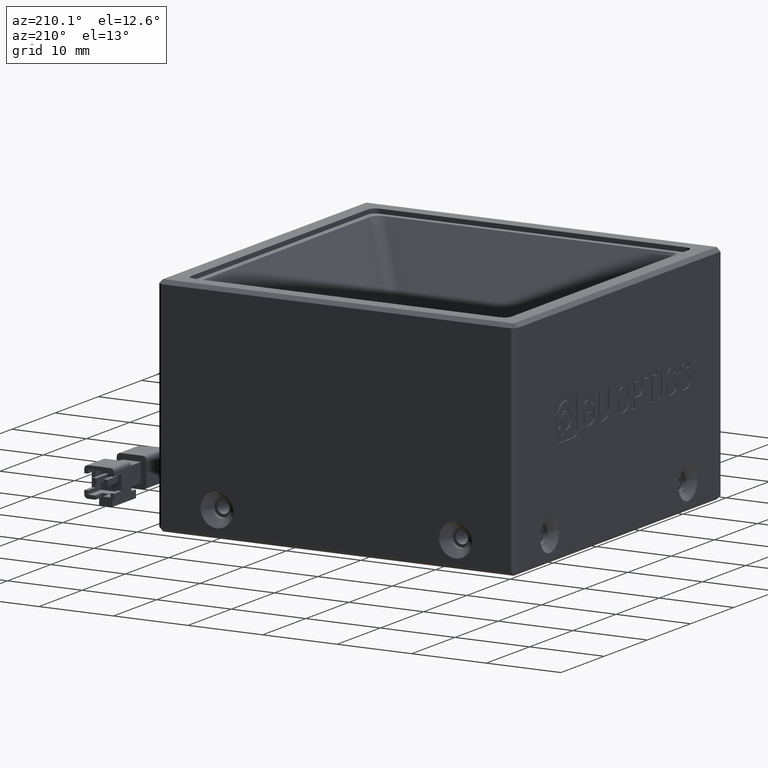
[diagram: clean part render]
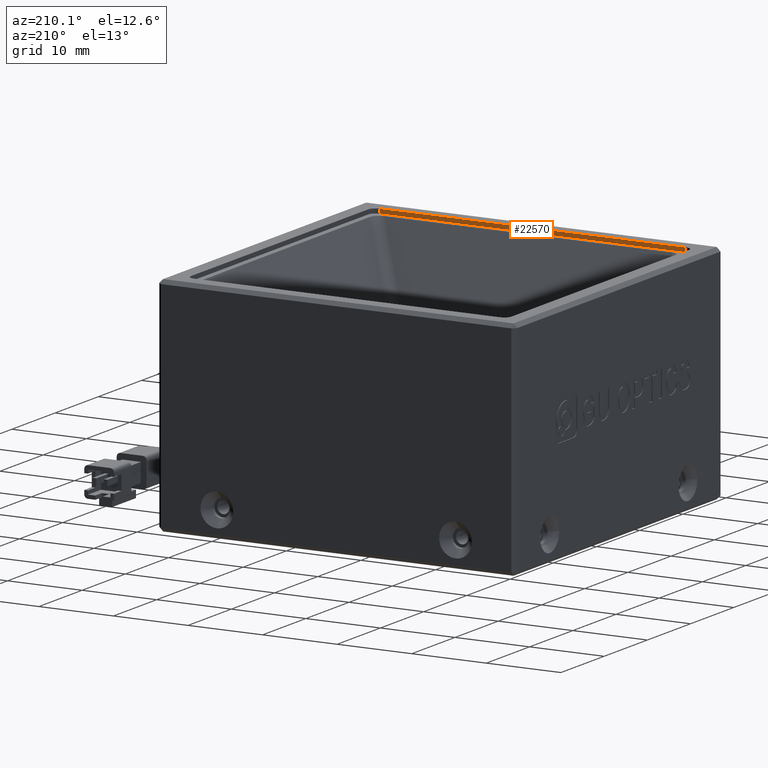
[diagram: same view with one face highlighted and labeled with its STEP entity id]
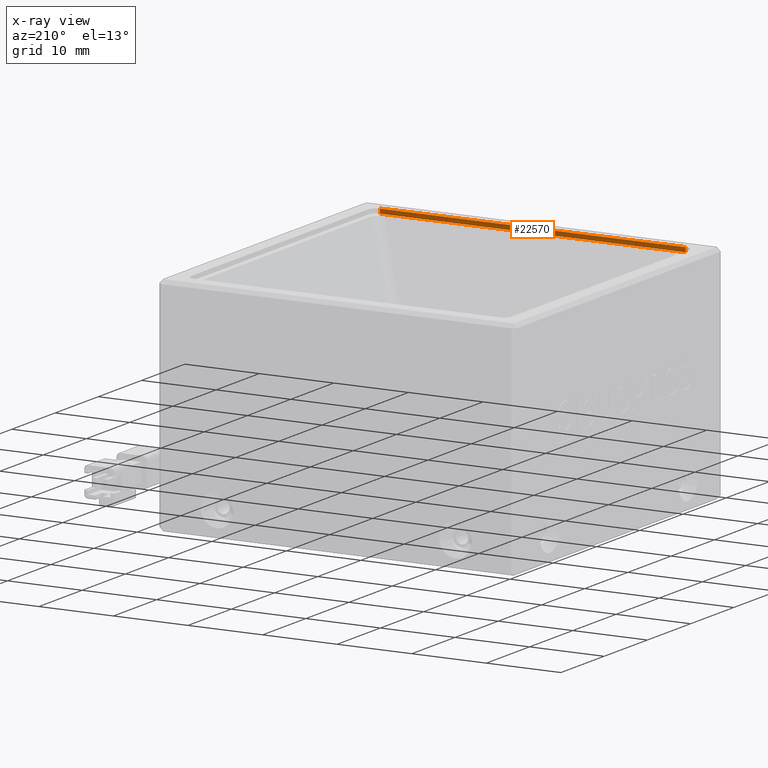
[diagram: x-ray of the same camera — body ghosted, the highlighted face saturated]
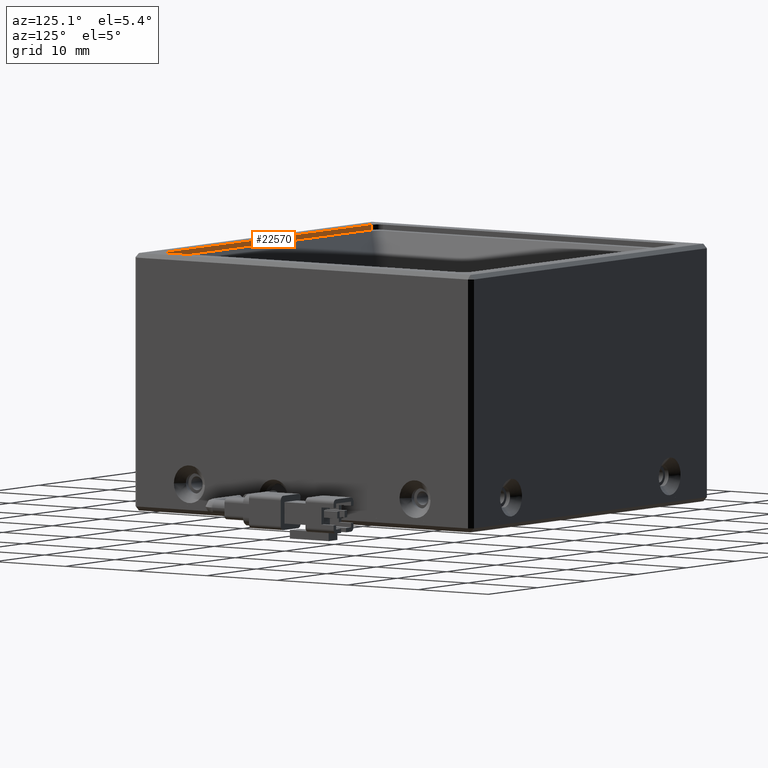
[diagram: same view with one face highlighted and labeled with its STEP entity id]
A machine part, auxiliary view. The second image highlights one B-rep face of the part: STEP entity #22570.
The next image is the same camera in x-ray: the body ghosted, the highlighted face saturated — about 0% of this face is hidden behind the body in this view.
A second angle (auxiliary view) of the same face is appended — the face is thin or edge-on in the first view.
In plain terms, the highlighted planar face has unit normal (-0, -1, 0).
Its self-contained STEP definition (entity closure, byte-faithful):
#650 = CARTESIAN_POINT ( 'NONE',  ( -19.81427458548065700, -20.09390667125563500, 29.40000000000727800 ) ) ;
#1278 = ORIENTED_EDGE ( 'NONE', *, *, #14854, .T. ) ;
#1764 = ORIENTED_EDGE ( 'NONE', *, *, #3647, .F. ) ;
#3647 = EDGE_CURVE ( 'NONE', #26277, #5742, #13430, .T. ) ;
#5459 = FACE_OUTER_BOUND ( 'NONE', #20922, .T. ) ;
#5656 = VERTEX_POINT ( 'NONE', #17106 ) ;
#5742 = VERTEX_POINT ( 'NONE', #19634 ) ;
#5917 = ORIENTED_EDGE ( 'NONE', *, *, #6300, .F. ) ;
#6300 = EDGE_CURVE ( 'NONE', #5656, #8706, #26528, .T. ) ;
#7153 = DIRECTION ( 'NONE',  ( -0.0000000000000000000, -0.0000000000000000000, -1.000000000000000000 ) ) ;
#8706 = VERTEX_POINT ( 'NONE', #18783 ) ;
#9347 = CARTESIAN_POINT ( 'NONE',  ( -40.31427458548064600, -20.09390667125563100, 29.40000000000727800 ) ) ;
#10248 = ORIENTED_EDGE ( 'NONE', *, *, #11792, .F. ) ;
#10536 = DIRECTION ( 'NONE',  ( -8.462065736472231100E-017, -1.000000000000000000, 0.0000000000000000000 ) ) ;
#11414 = DIRECTION ( 'NONE',  ( 0.0000000000000000000, 0.0000000000000000000, 1.000000000000000000 ) ) ;
#11792 = EDGE_CURVE ( 'NONE', #5742, #5656, #13185, .T. ) ;
#11903 = DIRECTION ( 'NONE',  ( -1.000000000000000000, -0.0000000000000000000, -0.0000000000000000000 ) ) ;
#13185 = LINE ( 'NONE', #25528, #19268 ) ;
#13430 = LINE ( 'NONE', #22804, #27695 ) ;
#14274 = DIRECTION ( 'NONE',  ( -1.000000000000000000, -0.0000000000000000000, -0.0000000000000000000 ) ) ;
#14854 = EDGE_CURVE ( 'NONE', #26277, #8706, #17348, .T. ) ;
#15032 = PLANE ( 'NONE',  #16528 ) ;
#16528 = AXIS2_PLACEMENT_3D ( 'NONE', #24185, #10536, #26457 ) ;
#17106 = CARTESIAN_POINT ( 'NONE',  ( -40.31427458548064600, -20.09390667125563100, 30.00000000000728000 ) ) ;
#17348 = LINE ( 'NONE', #650, #20200 ) ;
#18783 = CARTESIAN_POINT ( 'NONE',  ( -40.31427458548064600, -20.09390667125563100, 29.40000000000727800 ) ) ;
#19268 = VECTOR ( 'NONE', #11903, 1000.000000000000000 ) ;
#19634 = CARTESIAN_POINT ( 'NONE',  ( 0.6857254145193475400, -20.09390667125563100, 30.00000000000728000 ) ) ;
#20143 = CARTESIAN_POINT ( 'NONE',  ( 0.6857254145193475400, -20.09390667125563500, 29.40000000000727800 ) ) ;
#20200 = VECTOR ( 'NONE', #14274, 1000.000000000000000 ) ;
#20517 = VECTOR ( 'NONE', #7153, 1000.000000000000000 ) ;
#20922 = EDGE_LOOP ( 'NONE', ( #1764, #1278, #5917, #10248 ) ) ;
#22570 = ADVANCED_FACE ( 'NONE', ( #5459 ), #15032, .F. ) ;
#22804 = CARTESIAN_POINT ( 'NONE',  ( 0.6857254145193475400, -20.09390667125563500, 29.40000000000727800 ) ) ;
#24185 = CARTESIAN_POINT ( 'NONE',  ( -40.31427458548064600, -20.09390667125563100, 29.40000000000727800 ) ) ;
#25528 = CARTESIAN_POINT ( 'NONE',  ( -43.81427458548066100, -20.09390667125563100, 30.00000000000728000 ) ) ;
#26277 = VERTEX_POINT ( 'NONE', #20143 ) ;
#26457 = DIRECTION ( 'NONE',  ( 1.000000000000000000, -8.462065736472231100E-017, 0.0000000000000000000 ) ) ;
#26528 = LINE ( 'NONE', #9347, #20517 ) ;
#27695 = VECTOR ( 'NONE', #11414, 1000.000000000000000 ) ;